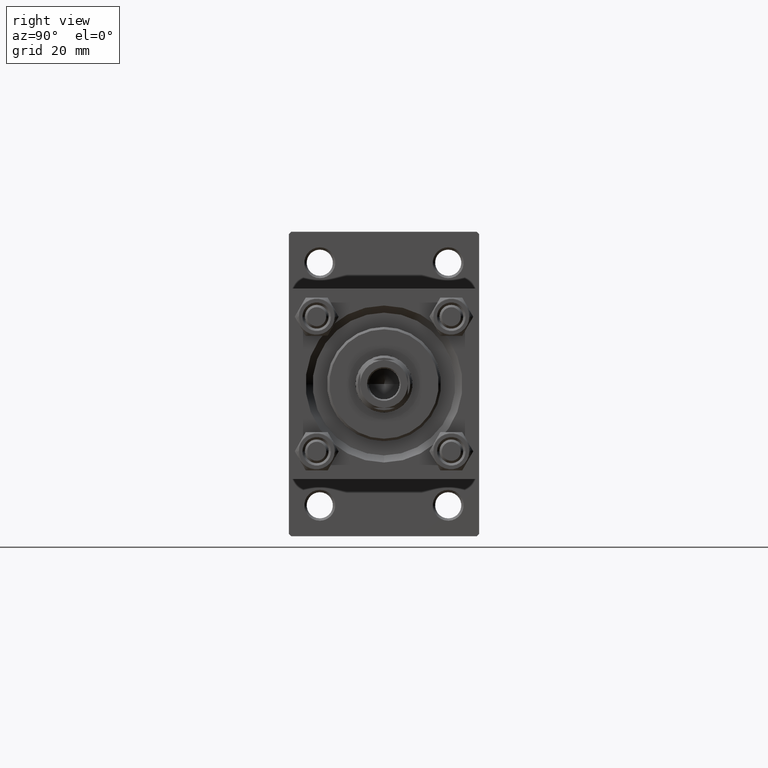
[diagram: clean part render]
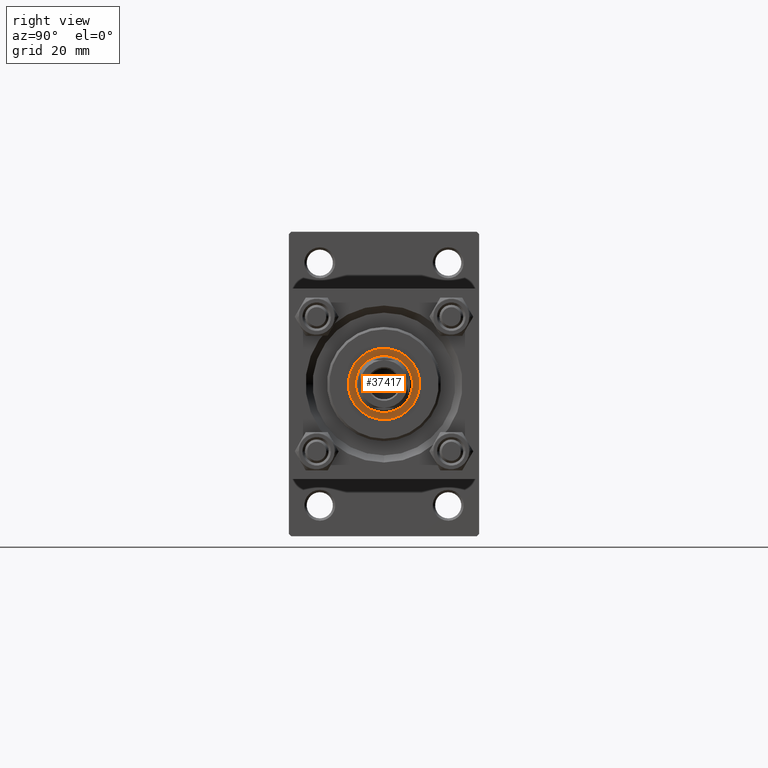
[diagram: same view with one face highlighted and labeled with its STEP entity id]
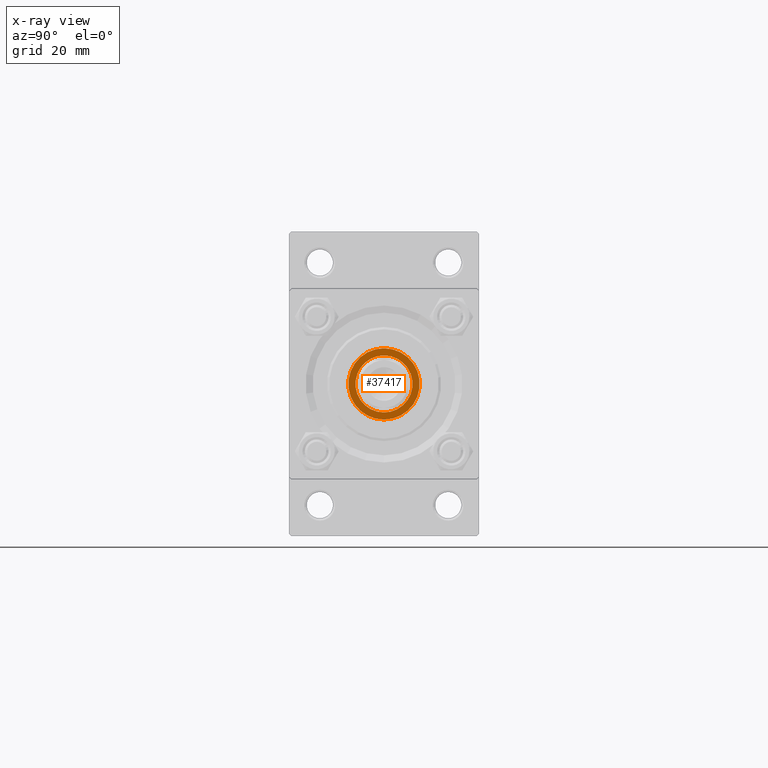
[diagram: x-ray of the same camera — body ghosted, the highlighted face saturated]
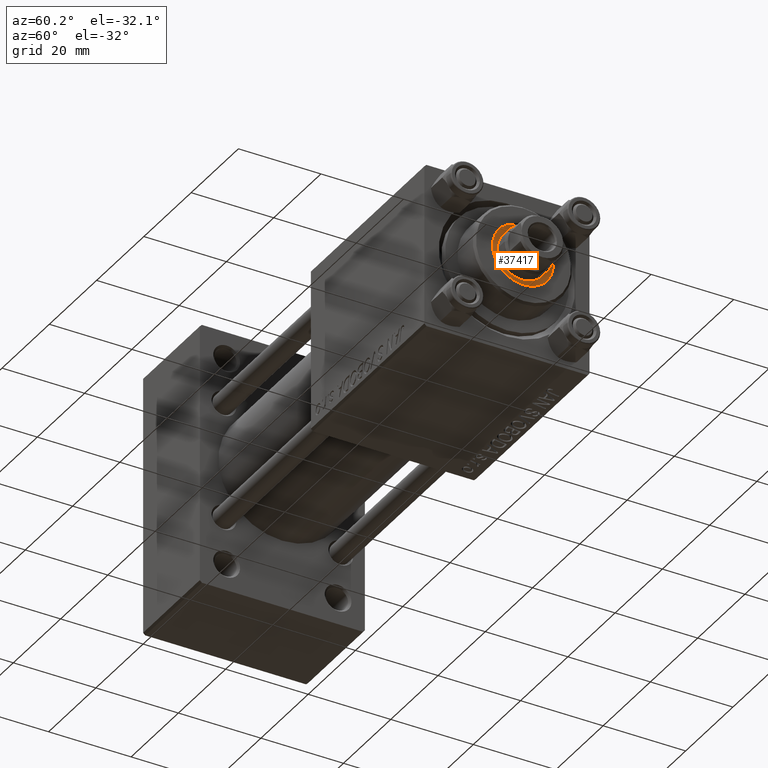
[diagram: same view with one face highlighted and labeled with its STEP entity id]
A machine part, right view. The second image highlights one B-rep face of the part: STEP entity #37417.
The next image is the same camera in x-ray: the body ghosted, the highlighted face saturated — about 0% of this face is hidden behind the body in this view.
A second angle (auxiliary view) of the same face is appended — the face is thin or edge-on in the first view.
In plain terms, the highlighted planar face has unit normal (1, 0, 0).
Its self-contained STEP definition (entity closure, byte-faithful):
#1464 = VERTEX_POINT ( 'NONE', #18077 ) ;
#2644 = FACE_OUTER_BOUND ( 'NONE', #33777, .T. ) ;
#2695 = CARTESIAN_POINT ( 'NONE',  ( 0.000000000000000000, 0.000000000000000000, 35.20000000000000284 ) ) ;
#6281 = DIRECTION ( 'NONE',  ( -0.000000000000000000, -0.000000000000000000, -1.000000000000000000 ) ) ;
#8519 = CIRCLE ( 'NONE', #27025, 7.500000000000000888 ) ;
#8735 = VERTEX_POINT ( 'NONE', #26007 ) ;
#10460 = PLANE ( 'NONE',  #14630 ) ;
#10505 = DIRECTION ( 'NONE',  ( 1.000000000000000000, 0.000000000000000000, 0.000000000000000000 ) ) ;
#10767 = DIRECTION ( 'NONE',  ( 0.000000000000000000, 0.000000000000000000, 1.000000000000000000 ) ) ;
#12154 = VERTEX_POINT ( 'NONE', #17325 ) ;
#12885 = EDGE_CURVE ( 'NONE', #1464, #25364, #32355, .T. ) ;
#13380 = CIRCLE ( 'NONE', #41589, 6.000000000000000888 ) ;
#14538 = AXIS2_PLACEMENT_3D ( 'NONE', #2695, #10767, #33464 ) ;
#14630 = AXIS2_PLACEMENT_3D ( 'NONE', #48825, #17027, #18030 ) ;
#15379 = CARTESIAN_POINT ( 'NONE',  ( 7.500000000000000888, 0.000000000000000000, 35.20000000000000284 ) ) ;
#16335 = CIRCLE ( 'NONE', #22764, 6.000000000000000888 ) ;
#17027 = DIRECTION ( 'NONE',  ( 0.000000000000000000, 0.000000000000000000, 1.000000000000000000 ) ) ;
#17325 = CARTESIAN_POINT ( 'NONE',  ( 6.000000000000000888, 0.000000000000000000, 35.20000000000000284 ) ) ;
#17992 = CARTESIAN_POINT ( 'NONE',  ( 0.000000000000000000, 0.000000000000000000, 35.20000000000000284 ) ) ;
#18030 = DIRECTION ( 'NONE',  ( 1.000000000000000000, 0.000000000000000000, -0.000000000000000000 ) ) ;
#18077 = CARTESIAN_POINT ( 'NONE',  ( -7.500000000000000888, 9.184850993605149917E-16, 35.20000000000000284 ) ) ;
#18489 = EDGE_CURVE ( 'NONE', #8735, #12154, #16335, .T. ) ;
#19661 = ORIENTED_EDGE ( 'NONE', *, *, #18489, .T. ) ;
#20078 = EDGE_CURVE ( 'NONE', #25364, #1464, #8519, .T. ) ;
#21631 = EDGE_CURVE ( 'NONE', #12154, #8735, #13380, .T. ) ;
#22764 = AXIS2_PLACEMENT_3D ( 'NONE', #29908, #41530, #10505 ) ;
#25364 = VERTEX_POINT ( 'NONE', #15379 ) ;
#25665 = CARTESIAN_POINT ( 'NONE',  ( 0.000000000000000000, 0.000000000000000000, 35.20000000000000284 ) ) ;
#26007 = CARTESIAN_POINT ( 'NONE',  ( -6.000000000000000888, 7.347880794884119736E-16, 35.20000000000000284 ) ) ;
#27025 = AXIS2_PLACEMENT_3D ( 'NONE', #17992, #44979, #41207 ) ;
#29908 = CARTESIAN_POINT ( 'NONE',  ( 0.000000000000000000, 0.000000000000000000, 35.20000000000000284 ) ) ;
#32355 = CIRCLE ( 'NONE', #14538, 7.500000000000000888 ) ;
#33464 = DIRECTION ( 'NONE',  ( 1.000000000000000000, 0.000000000000000000, 0.000000000000000000 ) ) ;
#33777 = EDGE_LOOP ( 'NONE', ( #45349, #41821 ) ) ;
#37417 = ADVANCED_FACE ( 'NONE', ( #2644, #40748 ), #10460, .T. ) ;
#38821 = EDGE_LOOP ( 'NONE', ( #39589, #19661 ) ) ;
#39589 = ORIENTED_EDGE ( 'NONE', *, *, #21631, .T. ) ;
#40748 = FACE_BOUND ( 'NONE', #38821, .T. ) ;
#41207 = DIRECTION ( 'NONE',  ( 1.000000000000000000, 0.000000000000000000, 0.000000000000000000 ) ) ;
#41530 = DIRECTION ( 'NONE',  ( -0.000000000000000000, -0.000000000000000000, -1.000000000000000000 ) ) ;
#41582 = DIRECTION ( 'NONE',  ( 1.000000000000000000, 0.000000000000000000, 0.000000000000000000 ) ) ;
#41589 = AXIS2_PLACEMENT_3D ( 'NONE', #25665, #6281, #41582 ) ;
#41821 = ORIENTED_EDGE ( 'NONE', *, *, #12885, .T. ) ;
#44979 = DIRECTION ( 'NONE',  ( 0.000000000000000000, 0.000000000000000000, 1.000000000000000000 ) ) ;
#45349 = ORIENTED_EDGE ( 'NONE', *, *, #20078, .T. ) ;
#48825 = CARTESIAN_POINT ( 'NONE',  ( 0.000000000000000000, 0.000000000000000000, 35.20000000000000284 ) ) ;